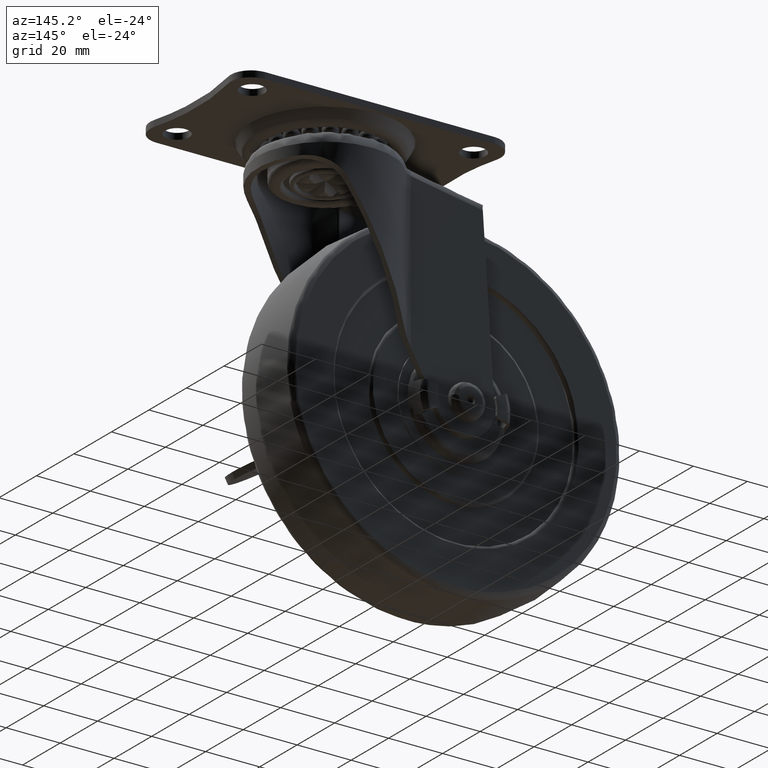
[diagram: clean part render]
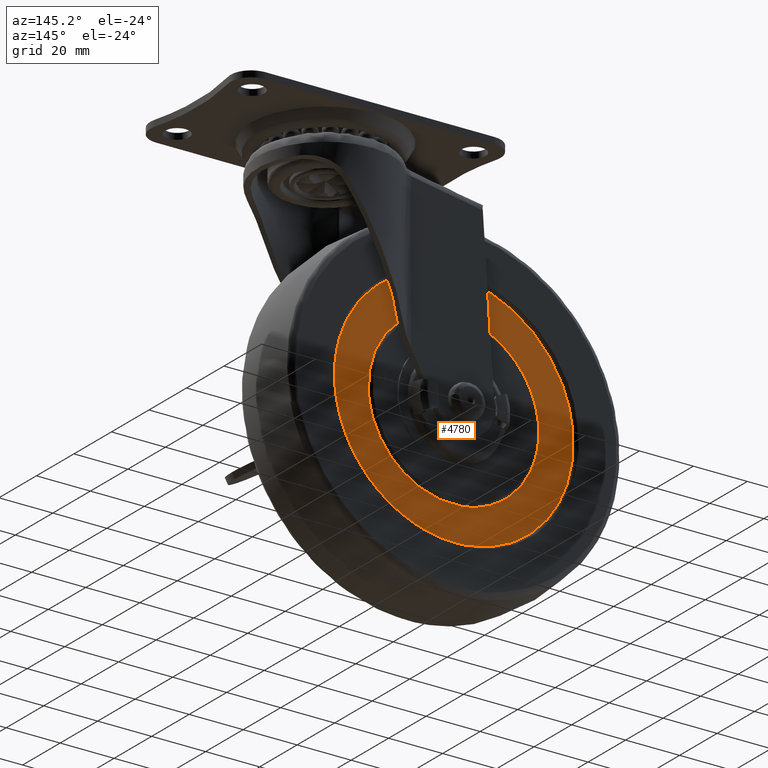
[diagram: same view with one face highlighted and labeled with its STEP entity id]
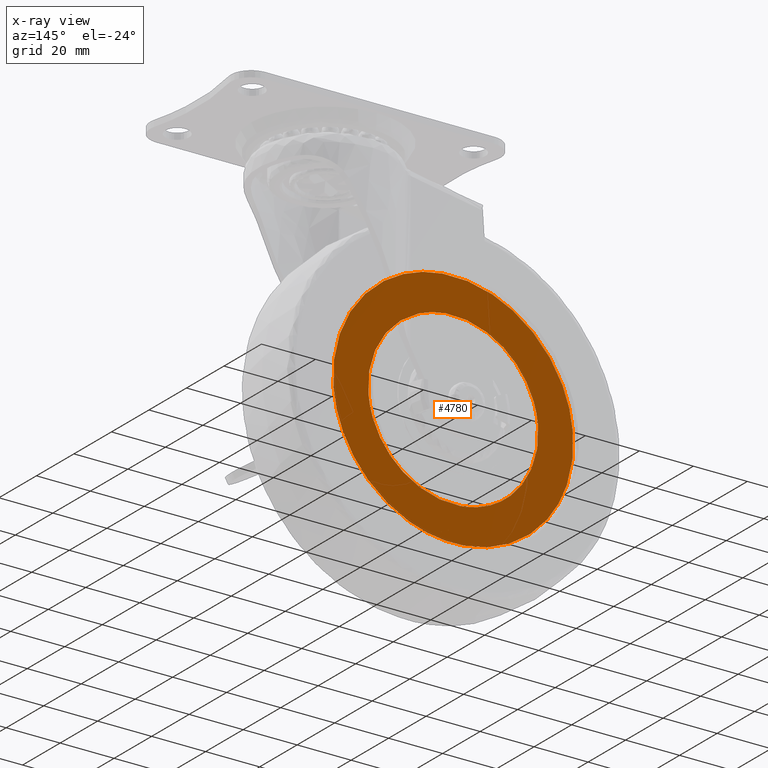
[diagram: x-ray of the same camera — body ghosted, the highlighted face saturated]
A machine part, auxiliary view. The second image highlights one B-rep face of the part: STEP entity #4780.
The next image is the same camera in x-ray: the body ghosted, the highlighted face saturated — about 0% of this face is hidden behind the body in this view.
In plain terms, the highlighted face is a freeform B-spline surface patch.
Its self-contained STEP definition (entity closure, byte-faithful):
#504=CARTESIAN_POINT('',(19.795788578736289,11.999999999999980,-39.854443916056709));
#505=VERTEX_POINT('',#504);
#506=CARTESIAN_POINT('',(44.499999999999893,12.0,0.000003084618100));
#507=VERTEX_POINT('',#506);
#508=CARTESIAN_POINT('',(19.795788578736289,11.999999999999980,-39.854443916056709));
#509=CARTESIAN_POINT('',(22.445224607052420,11.999999999999989,-38.538971965787383));
#510=CARTESIAN_POINT('',(26.604129714667810,11.999999999999970,-35.926441514957027));
#511=CARTESIAN_POINT('',(32.100655955940432,11.999999999999980,-31.052497587763241));
#512=CARTESIAN_POINT('',(36.910918743813589,12.000000000000060,-25.318233378160730));
#513=CARTESIAN_POINT('',(40.519019150813591,11.999999999999959,-18.891399807064019));
#514=CARTESIAN_POINT('',(42.708210299149620,11.999999999999989,-12.832412822003590));
#515=CARTESIAN_POINT('',(44.112361663142629,12.000000000000011,-6.944755986227409));
#516=CARTESIAN_POINT('',(44.500303001920052,11.999999999999980,-2.700793338771396));
#517=CARTESIAN_POINT('',(44.499999999999893,12.0,0.000003084618100));
#518=B_SPLINE_CURVE_WITH_KNOTS('',3,(#508,#509,#510,#511,#512,#513,#514,#515,#516,#517),.UNSPECIFIED.,.F.,.U.,(4,1,1,1,1,1,1,4),(0.000000053035627,8.874005582913533,14.661429263622500,21.992163692698028,31.251964161815661,36.653547211957992,41.283495691602113,49.385833094094068),.UNSPECIFIED.);
#519=EDGE_CURVE('',#505,#507,#518,.T.);
#521=CARTESIAN_POINT('',(0.0,12.0,44.500000000000000));
#522=VERTEX_POINT('',#521);
#523=CARTESIAN_POINT('',(44.499999999999893,12.0,0.000003084618100));
#524=CARTESIAN_POINT('',(44.500310322905477,12.000000000000020,2.821512291857727));
#525=CARTESIAN_POINT('',(43.978933819414358,11.999999999999920,8.282375112801519));
#526=CARTESIAN_POINT('',(41.838584884102268,12.000000000000130,15.748705474138230));
#527=CARTESIAN_POINT('',(38.852986050232822,11.999999999999680,22.011069138045901));
#528=CARTESIAN_POINT('',(35.254603823962860,12.000000000000240,27.396383010648020));
#529=CARTESIAN_POINT('',(30.689268286574340,11.999999999999741,32.496210687658362));
#530=CARTESIAN_POINT('',(24.853765646963410,12.000000000000339,37.196237557956273));
#531=CARTESIAN_POINT('',(18.679233505276478,11.999999999999719,40.569852372153278));
#532=CARTESIAN_POINT('',(12.690275896149570,11.999999999999799,42.774943766736563));
#533=CARTESIAN_POINT('',(6.735128251174644,12.000000000000520,44.150692936927328));
#534=CARTESIAN_POINT('',(2.366410878828166,11.999999999999741,44.500156591505828));
#535=CARTESIAN_POINT('',(0.0,12.0,44.500000000000000));
#536=B_SPLINE_CURVE_WITH_KNOTS('',3,(#523,#524,#525,#526,#527,#528,#529,#530,#531,#532,#533,#534,#535),.UNSPECIFIED.,.F.,.U.,(4,1,1,1,1,1,1,1,1,1,4),(0.000000150249349,8.464479157954521,16.382936887190422,23.209190074476471,29.216311495300989,35.769390563743102,43.687806755616592,51.606259046822217,56.794203968979510,62.801333089161950,69.900544457328152),.UNSPECIFIED.);
#537=EDGE_CURVE('',#507,#522,#536,.T.);
#539=CARTESIAN_POINT('',(-44.499999999999893,12.0,-0.000003084619322));
#540=VERTEX_POINT('',#539);
#541=CARTESIAN_POINT('',(0.0,12.0,44.500000000000000));
#542=CARTESIAN_POINT('',(-1.911332351501787,11.999999999999959,44.500045826557212));
#543=CARTESIAN_POINT('',(-6.098083111909138,12.000000000000091,44.229948378637182));
#544=CARTESIAN_POINT('',(-11.459803565383940,11.999999999999890,43.112030019297023));
#545=CARTESIAN_POINT('',(-16.725656797234301,12.000000000000020,41.336465702740519));
#546=CARTESIAN_POINT('',(-21.108926570278019,11.999999999999989,39.296150215449181));
#547=CARTESIAN_POINT('',(-26.297896806036938,12.000000000000121,36.076933821243308));
#548=CARTESIAN_POINT('',(-30.794458356536580,11.999999999999620,32.340308739700653));
#549=CARTESIAN_POINT('',(-34.882620526159357,12.000000000000330,27.801559700506960));
#550=CARTESIAN_POINT('',(-37.822953707189512,11.999999999999650,23.626582232325340));
#551=CARTESIAN_POINT('',(-40.532538145029093,11.999999999999590,18.667862739684619));
#552=CARTESIAN_POINT('',(-42.386885285183958,11.999999999999719,13.904143012805930));
#553=CARTESIAN_POINT('',(-44.042354413486621,11.999999999999931,7.463124160866179));
#554=CARTESIAN_POINT('',(-44.500525485428973,11.999999999999430,3.094589003879510));
#555=CARTESIAN_POINT('',(-44.499999999999893,12.0,-0.000003084619322));
#556=B_SPLINE_CURVE_WITH_KNOTS('',3,(#541,#542,#543,#544,#545,#546,#547,#548,#549,#550,#551,#552,#553,#554,#555),.UNSPECIFIED.,.F.,.U.,(4,1,1,1,1,1,1,1,1,1,1,1,4),(0.000000150145652,5.734014988671916,12.560225856137089,16.382937702060669,22.390030341302399,27.031910360779712,34.677315416849389,39.865082145928170,45.326123766446202,49.967954705744418,56.794206794697153,60.616931176505787,69.900547934417403),.UNSPECIFIED.);
#557=EDGE_CURVE('',#522,#540,#556,.T.);
#559=CARTESIAN_POINT('',(-32.279160075502453,12.0,-30.631779141258011));
#560=VERTEX_POINT('',#559);
#561=CARTESIAN_POINT('',(-44.499999999999893,12.0,-0.000003084619322));
#562=CARTESIAN_POINT('',(-44.500576562613162,12.000000000000030,-3.167421244963922));
#563=CARTESIAN_POINT('',(-43.914949708046137,11.999999999999940,-8.622065736612699));
#564=CARTESIAN_POINT('',(-41.613883533185522,12.000000000000080,-16.315563914413769));
#565=CARTESIAN_POINT('',(-38.052706412228957,11.999999999999851,-23.617858513714062));
#566=CARTESIAN_POINT('',(-34.520407227230798,12.000000000000080,-28.270771198490799));
#567=CARTESIAN_POINT('',(-32.279160075502453,12.0,-30.631779141258011));
#568=B_SPLINE_CURVE_WITH_KNOTS('',3,(#561,#562,#563,#564,#565,#566,#567),.UNSPECIFIED.,.F.,.U.,(4,1,1,1,4),(0.000000035231309,9.502110489513743,16.364767562319461,24.019198916755311,33.785257718074540),.UNSPECIFIED.);
#569=EDGE_CURVE('',#540,#560,#568,.T.);
#664=CARTESIAN_POINT('',(0.0,12.0,-44.500000000000000));
#665=VERTEX_POINT('',#664);
#666=CARTESIAN_POINT('',(0.0,12.0,-44.500000000000000));
#667=CARTESIAN_POINT('',(3.098614409953382,12.000000000000041,-44.500396062313342));
#668=CARTESIAN_POINT('',(9.936670502659265,11.999999999999810,-43.782850466375237));
#669=CARTESIAN_POINT('',(16.446923747064140,12.000000000000160,-41.519072176707581));
#670=CARTESIAN_POINT('',(19.795788578736289,11.999999999999980,-39.854443916056709));
#671=B_SPLINE_CURVE_WITH_KNOTS('',3,(#666,#667,#668,#669,#670),.UNSPECIFIED.,.F.,.U.,(4,1,4),(0.000000012712569,9.295789421923153,20.514805082910438),.UNSPECIFIED.);
#672=EDGE_CURVE('',#665,#505,#671,.T.);
#697=CARTESIAN_POINT('',(-32.279160075502453,12.0,-30.631779141258011));
#698=CARTESIAN_POINT('',(-30.725493028783450,12.000000000000030,-32.269181378916983));
#699=CARTESIAN_POINT('',(-27.438182433102860,11.999999999999959,-35.243487682321302));
#700=CARTESIAN_POINT('',(-22.333011427432741,12.000000000000011,-38.635833241016272));
#701=CARTESIAN_POINT('',(-16.836811694385961,12.000000000000121,-41.335042890094797));
#702=CARTESIAN_POINT('',(-9.592724817678320,11.999999999999540,-43.763049985375190));
#703=CARTESIAN_POINT('',(-3.668057902541781,12.000000000000281,-44.501002615560850));
#704=CARTESIAN_POINT('',(0.0,12.0,-44.500000000000000));
#705=B_SPLINE_CURVE_WITH_KNOTS('',3,(#697,#698,#699,#700,#701,#702,#703,#704),.UNSPECIFIED.,.F.,.U.,(4,1,1,1,1,4),(0.000000043087240,6.771603111310359,13.261090027534131,18.339745024456459,25.111408681006001,36.115286363479854),.UNSPECIFIED.);
#706=EDGE_CURVE('',#560,#665,#705,.T.);
#1702=CARTESIAN_POINT('',(-11.129011949850060,12.000000001537940,-29.468544127935711));
#1703=VERTEX_POINT('',#1702);
#1704=CARTESIAN_POINT('',(0.0,12.0,-31.500000000000000));
#1705=VERTEX_POINT('',#1704);
#1706=CARTESIAN_POINT('',(-11.129011949850060,12.000000001537940,-29.468544127935711));
#1707=CARTESIAN_POINT('',(-9.244736369681506,12.000000000999000,-30.180445799082840));
#1708=CARTESIAN_POINT('',(-5.568762988574094,12.000000000243610,-31.178191263742470));
#1709=CARTESIAN_POINT('',(-1.777291145908732,11.999999999999879,-31.500155996407980));
#1710=CARTESIAN_POINT('',(0.0,12.0,-31.500000000000000));
#1711=B_SPLINE_CURVE_WITH_KNOTS('',3,(#1706,#1707,#1708,#1709,#1710),.UNSPECIFIED.,.F.,.U.,(4,1,4),(3.661711E-009,6.042787241644639,11.374658499874460),.UNSPECIFIED.);
#1712=EDGE_CURVE('',#1703,#1705,#1711,.T.);
#1788=CARTESIAN_POINT('',(-31.499999999999989,12.000000001102361,3.546573E-015));
#1789=VERTEX_POINT('',#1788);
#1800=CARTESIAN_POINT('',(0.0,12.0,31.500000000000000));
#1801=VERTEX_POINT('',#1800);
#1802=CARTESIAN_POINT('',(0.0,12.0,31.500000000000000));
#1803=CARTESIAN_POINT('',(-1.481826916871938,12.0,31.500056636449880));
#1804=CARTESIAN_POINT('',(-4.445459894294840,12.000000000007320,31.290502779143679));
#1805=CARTESIAN_POINT('',(-8.928819751399276,12.000000000041060,30.327017968984819));
#1806=CARTESIAN_POINT('',(-14.010904005037160,12.000000000107759,28.420568750531672));
#1807=CARTESIAN_POINT('',(-18.996262990594591,12.000000000213801,25.390758634384198));
#1808=CARTESIAN_POINT('',(-23.273296168889111,12.000000000351850,21.441527292404221));
#1809=CARTESIAN_POINT('',(-26.361901193288791,12.000000000491420,17.458659937613131));
#1810=CARTESIAN_POINT('',(-28.818693939366259,12.000000000645350,13.059160753331451));
#1811=CARTESIAN_POINT('',(-30.906836465361870,12.000000000847550,7.279939807313244));
#1812=CARTESIAN_POINT('',(-31.500763851863258,12.000000001007811,2.706010738337885));
#1813=CARTESIAN_POINT('',(-31.499999999999989,12.000000001102361,3.546573E-015));
#1814=B_SPLINE_CURVE_WITH_KNOTS('',3,(#1802,#1803,#1804,#1805,#1806,#1807,#1808,#1809,#1810,#1811,#1812,#1813),.UNSPECIFIED.,.F.,.U.,(4,1,1,1,1,1,1,1,1,4),(0.000000162686952,4.445481361603129,8.890962611942022,13.723014974788899,20.681205790227001,26.286263324283951,31.118331481460970,35.757142813252500,41.362338280823479,49.480161913936762),.UNSPECIFIED.);
#1815=EDGE_CURVE('',#1801,#1789,#1814,.T.);
#1817=CARTESIAN_POINT('',(31.499999999999780,12.0,0.000003685487287));
#1818=VERTEX_POINT('',#1817);
#1819=CARTESIAN_POINT('',(31.499999999999780,12.0,0.000003685487287));
#1820=CARTESIAN_POINT('',(31.500716662707561,12.000000000000020,2.641591843501238));
#1821=CARTESIAN_POINT('',(30.986319018313420,11.999999999999989,6.700099634077409));
#1822=CARTESIAN_POINT('',(29.163095144821131,12.000000000000011,12.218436826949370));
#1823=CARTESIAN_POINT('',(26.736104651501730,11.999999999999970,17.004079608355202));
#1824=CARTESIAN_POINT('',(23.177578317095570,11.999999999999870,21.622086714717341));
#1825=CARTESIAN_POINT('',(18.804564329592719,12.000000000000449,25.464790803322440));
#1826=CARTESIAN_POINT('',(14.889406627365600,11.999999999999350,27.860565633553659));
#1827=CARTESIAN_POINT('',(10.767640807424280,12.000000000000229,29.702824133971600));
#1828=CARTESIAN_POINT('',(6.056036687079407,11.999999999999810,31.100553841346219));
#1829=CARTESIAN_POINT('',(2.126105210408497,12.000000000000270,31.500306358074091));
#1830=CARTESIAN_POINT('',(0.0,12.0,31.500000000000000));
#1831=B_SPLINE_CURVE_WITH_KNOTS('',3,(#1819,#1820,#1821,#1822,#1823,#1824,#1825,#1826,#1827,#1828,#1829,#1830),.UNSPECIFIED.,.F.,.U.,(4,1,1,1,1,1,1,1,1,4),(0.000000162941305,7.924519292010118,12.176757498012661,17.395386228890050,23.967001560412680,29.572077590951132,34.790720437665563,37.689966782548538,43.101909652426137,49.480159836731659),.UNSPECIFIED.);
#1832=EDGE_CURVE('',#1818,#1801,#1831,.T.);
#1834=CARTESIAN_POINT('',(0.0,12.0,-31.500000000000000));
#1835=CARTESIAN_POINT('',(2.641583751692354,12.0,-31.500678262887622));
#1836=CARTESIAN_POINT('',(6.506827204678730,12.000000000000011,-31.010852844582072));
#1837=CARTESIAN_POINT('',(12.284424708529130,12.000000000000041,-29.160875798872521));
#1838=CARTESIAN_POINT('',(17.187454401733799,11.999999999999851,-26.655315975665339));
#1839=CARTESIAN_POINT('',(22.292410241146939,12.000000000000091,-22.569596000287710));
#1840=CARTESIAN_POINT('',(26.129681467375079,12.000000000000130,-17.922885540161499));
#1841=CARTESIAN_POINT('',(28.871961583851469,11.999999999999540,-12.939956414407490));
#1842=CARTESIAN_POINT('',(30.923488452218340,12.000000000000510,-7.151047535546389));
#1843=CARTESIAN_POINT('',(31.500792364414501,11.999999999999570,-2.706023976377769));
#1844=CARTESIAN_POINT('',(31.499999999999780,12.0,0.000003685487287));
#1845=B_SPLINE_CURVE_WITH_KNOTS('',3,(#1834,#1835,#1836,#1837,#1838,#1839,#1840,#1841,#1842,#1843,#1844),.UNSPECIFIED.,.F.,.U.,(4,1,1,1,1,1,1,1,4),(0.000000162560958,7.924519957092066,11.596908569522791,18.168502408743048,24.353546167665531,31.118332788224119,36.143710545518623,41.362340017736720,49.480163991141453),.UNSPECIFIED.);
#1846=EDGE_CURVE('',#1705,#1818,#1845,.T.);
#1868=CARTESIAN_POINT('',(-31.499999999999989,12.000000001102361,3.546573E-015));
#1869=CARTESIAN_POINT('',(-31.500220633865940,12.000000001001860,-1.984671514528428));
#1870=CARTESIAN_POINT('',(-31.161216426249549,12.000000000853150,-5.556969754393369));
#1871=CARTESIAN_POINT('',(-29.625788997518910,12.000000000711401,-11.224234497687970));
#1872=CARTESIAN_POINT('',(-27.286551803200410,12.000000000687001,-16.080385221976488));
#1873=CARTESIAN_POINT('',(-23.835609692945809,12.000000000773110,-20.828319064443360));
#1874=CARTESIAN_POINT('',(-19.978062257802520,12.000000000947830,-24.585639454509661));
#1875=CARTESIAN_POINT('',(-15.502870748219570,12.000000001220400,-27.568229688707870));
#1876=CARTESIAN_POINT('',(-12.521517266568789,12.000000001432740,-28.942702372160490));
#1877=CARTESIAN_POINT('',(-11.129011949850060,12.000000001537940,-29.468544127935711));
#1878=B_SPLINE_CURVE_WITH_KNOTS('',3,(#1868,#1869,#1870,#1871,#1872,#1873,#1874,#1875,#1876,#1877),.UNSPECIFIED.,.F.,.U.,(4,1,1,1,1,1,1,4),(0.000000091379107,5.953999267879382,10.717211189644090,17.564344982590221,22.029781317488141,28.281519553303902,33.640157978660930,38.105627947351003),.UNSPECIFIED.);
#1879=EDGE_CURVE('',#1789,#1703,#1878,.T.);
#4760=CARTESIAN_POINT('',(-48.945549827500606,12.0,48.945549827500727));
#4761=CARTESIAN_POINT('',(-48.945549827500606,12.0,-48.945552214666762));
#4762=CARTESIAN_POINT('',(48.945552214666627,12.0,48.945549827500727));
#4763=CARTESIAN_POINT('',(48.945552214666627,12.0,-48.945552214666762));
#4764=B_SPLINE_SURFACE_WITH_KNOTS('',1,1,((#4760,#4762),(#4761,#4763)),.UNSPECIFIED.,.F.,.F.,.U.,(2,2),(2,2),(0.0,97.891102042167489),(0.0,97.891102042167233),.UNSPECIFIED.);
#4765=ORIENTED_EDGE('',*,*,#706,.F.);
#4766=ORIENTED_EDGE('',*,*,#569,.F.);
#4767=ORIENTED_EDGE('',*,*,#557,.F.);
#4768=ORIENTED_EDGE('',*,*,#537,.F.);
#4769=ORIENTED_EDGE('',*,*,#519,.F.);
#4770=ORIENTED_EDGE('',*,*,#672,.F.);
#4771=EDGE_LOOP('',(#4765,#4766,#4767,#4768,#4769,#4770));
#4772=FACE_OUTER_BOUND('',#4771,.T.);
#4773=ORIENTED_EDGE('',*,*,#1815,.T.);
#4774=ORIENTED_EDGE('',*,*,#1879,.T.);
#4775=ORIENTED_EDGE('',*,*,#1712,.T.);
#4776=ORIENTED_EDGE('',*,*,#1846,.T.);
#4777=ORIENTED_EDGE('',*,*,#1832,.T.);
#4778=EDGE_LOOP('',(#4773,#4774,#4775,#4776,#4777));
#4779=FACE_BOUND('',#4778,.T.);
#4780=ADVANCED_FACE('',(#4772,#4779),#4764,.F.);